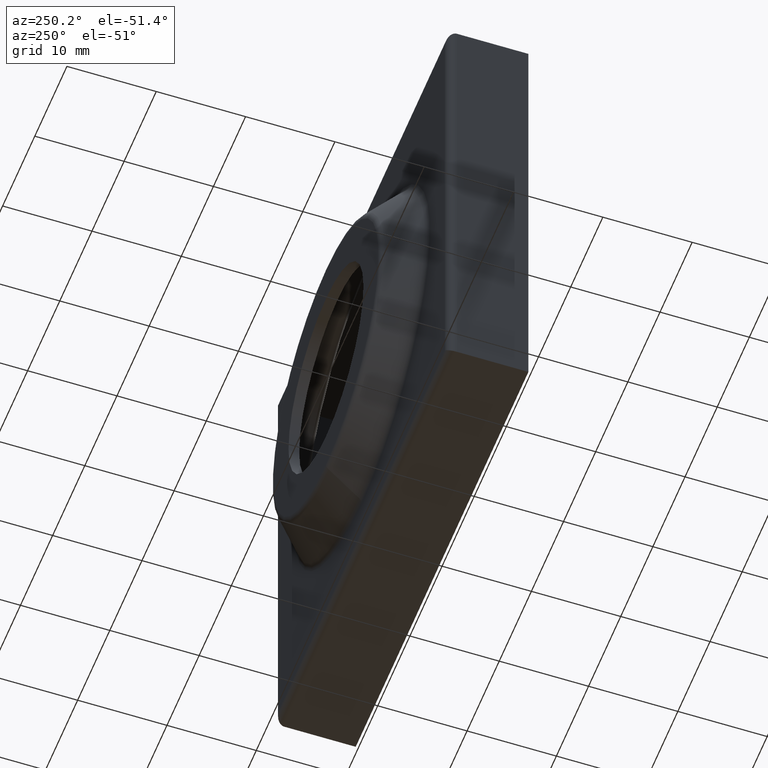
[diagram: clean part render]
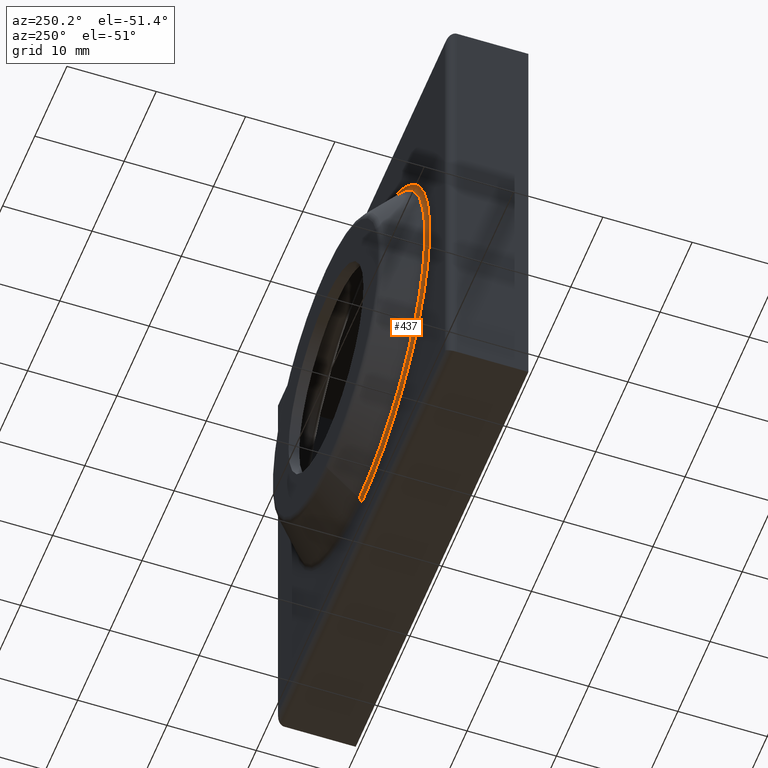
[diagram: same view with one face highlighted and labeled with its STEP entity id]
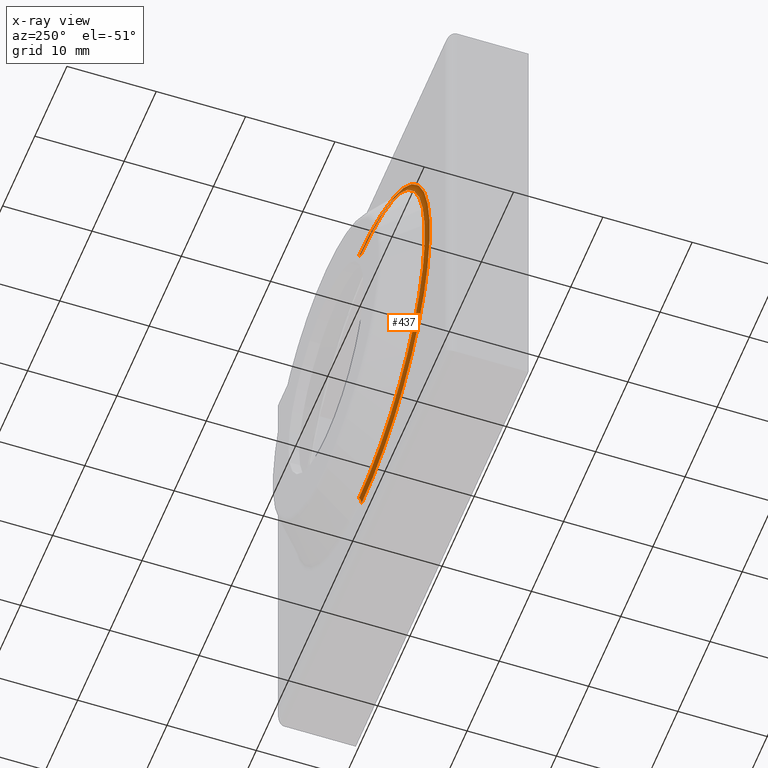
[diagram: x-ray of the same camera — body ghosted, the highlighted face saturated]
A machine part, auxiliary view. The second image highlights one B-rep face of the part: STEP entity #437.
The next image is the same camera in x-ray: the body ghosted, the highlighted face saturated — about 4% of this face is hidden behind the body in this view.
In plain terms, the highlighted toroidal blend (fillet) surface has major radius 21.1642 mm and minor (blend) radius 1 mm.
Its self-contained STEP definition (entity closure, byte-faithful):
#2 = CARTESIAN_POINT ( 'NONE',  ( 2.591868639563121200E-015, 9.999999999999998200, 21.16421356237309200 ) ) ;
#28 = DIRECTION ( 'NONE',  ( -1.000000000000000000, -0.0000000000000000000, -0.0000000000000000000 ) ) ;
#39 = ORIENTED_EDGE ( 'NONE', *, *, #317, .T. ) ;
#42 = VERTEX_POINT ( 'NONE', #105 ) ;
#64 = DIRECTION ( 'NONE',  ( 1.000000000000000000, 0.0000000000000000000, -1.224646799147353200E-016 ) ) ;
#78 = VERTEX_POINT ( 'NONE', #566 ) ;
#87 = CARTESIAN_POINT ( 'NONE',  ( 0.0000000000000000000, 9.000000000000000000, 0.0000000000000000000 ) ) ;
#105 = CARTESIAN_POINT ( 'NONE',  ( -2.505273033939572200E-015, 9.292893218813450300, -20.45710678118655000 ) ) ;
#123 = AXIS2_PLACEMENT_3D ( 'NONE', #699, #28, #230 ) ;
#187 = CIRCLE ( 'NONE', #662, 1.000000000000000900 ) ;
#215 = EDGE_CURVE ( 'NONE', #78, #781, #463, .T. ) ;
#230 = DIRECTION ( 'NONE',  ( 0.0000000000000000000, 0.0000000000000000000, 1.000000000000000000 ) ) ;
#246 = VERTEX_POINT ( 'NONE', #830 ) ;
#308 = CIRCLE ( 'NONE', #578, 20.45710678118655000 ) ;
#309 = CARTESIAN_POINT ( 'NONE',  ( 0.0000000000000000000, 9.292893218813450300, 0.0000000000000000000 ) ) ;
#317 = EDGE_CURVE ( 'NONE', #78, #246, #187, .T. ) ;
#344 = CIRCLE ( 'NONE', #123, 1.000000000000000900 ) ;
#367 = CARTESIAN_POINT ( 'NONE',  ( 0.0000000000000000000, 9.999999999999998200, 0.0000000000000000000 ) ) ;
#380 = AXIS2_PLACEMENT_3D ( 'NONE', #87, #413, #728 ) ;
#413 = DIRECTION ( 'NONE',  ( 0.0000000000000000000, -1.000000000000000000, 0.0000000000000000000 ) ) ;
#437 = ADVANCED_FACE ( 'NONE', ( #450 ), #793, .F. ) ;
#448 = ORIENTED_EDGE ( 'NONE', *, *, #593, .F. ) ;
#450 = FACE_OUTER_BOUND ( 'NONE', #581, .T. ) ;
#463 = CIRCLE ( 'NONE', #380, 21.16421356237309200 ) ;
#467 = ORIENTED_EDGE ( 'NONE', *, *, #215, .F. ) ;
#478 = AXIS2_PLACEMENT_3D ( 'NONE', #367, #746, #677 ) ;
#517 = DIRECTION ( 'NONE',  ( -1.224646799147353500E-016, 0.0000000000000000000, -1.000000000000000000 ) ) ;
#566 = CARTESIAN_POINT ( 'NONE',  ( 2.591868639563121200E-015, 8.999999999999998200, 21.16421356237309200 ) ) ;
#578 = AXIS2_PLACEMENT_3D ( 'NONE', #309, #753, #817 ) ;
#581 = EDGE_LOOP ( 'NONE', ( #467, #39, #448, #595 ) ) ;
#593 = EDGE_CURVE ( 'NONE', #42, #246, #308, .T. ) ;
#595 = ORIENTED_EDGE ( 'NONE', *, *, #796, .F. ) ;
#662 = AXIS2_PLACEMENT_3D ( 'NONE', #2, #64, #517 ) ;
#677 = DIRECTION ( 'NONE',  ( 0.0000000000000000000, 0.0000000000000000000, -1.000000000000000000 ) ) ;
#699 = CARTESIAN_POINT ( 'NONE',  ( 0.0000000000000000000, 9.999999999999998200, -21.16421356237309200 ) ) ;
#728 = DIRECTION ( 'NONE',  ( 0.0000000000000000000, 0.0000000000000000000, -1.000000000000000000 ) ) ;
#746 = DIRECTION ( 'NONE',  ( 0.0000000000000000000, -1.000000000000000000, 0.0000000000000000000 ) ) ;
#753 = DIRECTION ( 'NONE',  ( 0.0000000000000000000, 1.000000000000000000, 0.0000000000000000000 ) ) ;
#781 = VERTEX_POINT ( 'NONE', #791 ) ;
#791 = CARTESIAN_POINT ( 'NONE',  ( 0.0000000000000000000, 8.999999999999998200, -21.16421356237309200 ) ) ;
#793 = TOROIDAL_SURFACE ( 'NONE', #478, 21.16421356237309200, 1.000000000000000000 ) ;
#796 = EDGE_CURVE ( 'NONE', #781, #42, #344, .T. ) ;
#817 = DIRECTION ( 'NONE',  ( 0.0000000000000000000, 0.0000000000000000000, -1.000000000000000000 ) ) ;
#830 = CARTESIAN_POINT ( 'NONE',  ( 0.0000000000000000000, 9.292893218813450300, 20.45710678118655000 ) ) ;